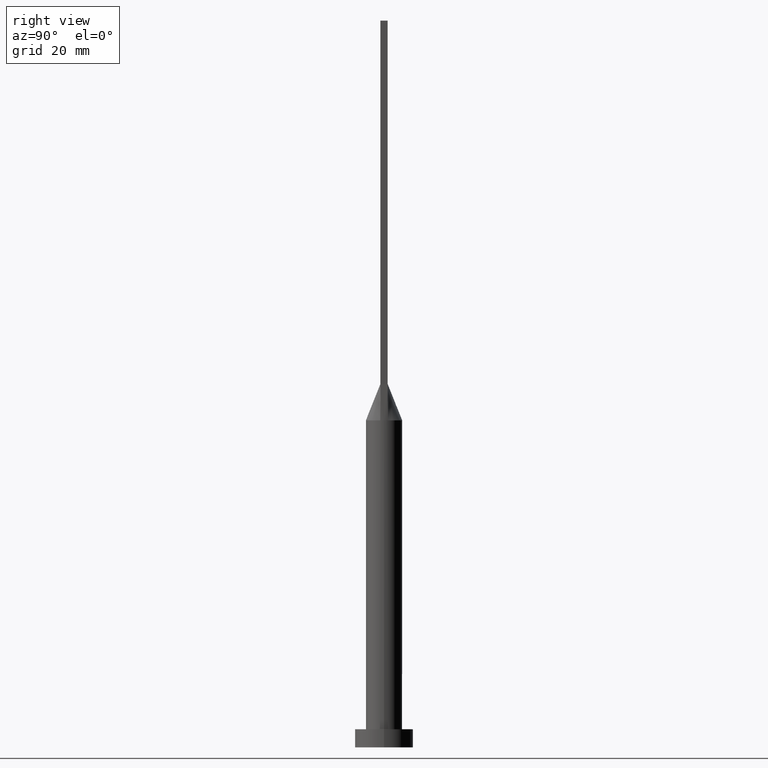
[diagram: clean part render]
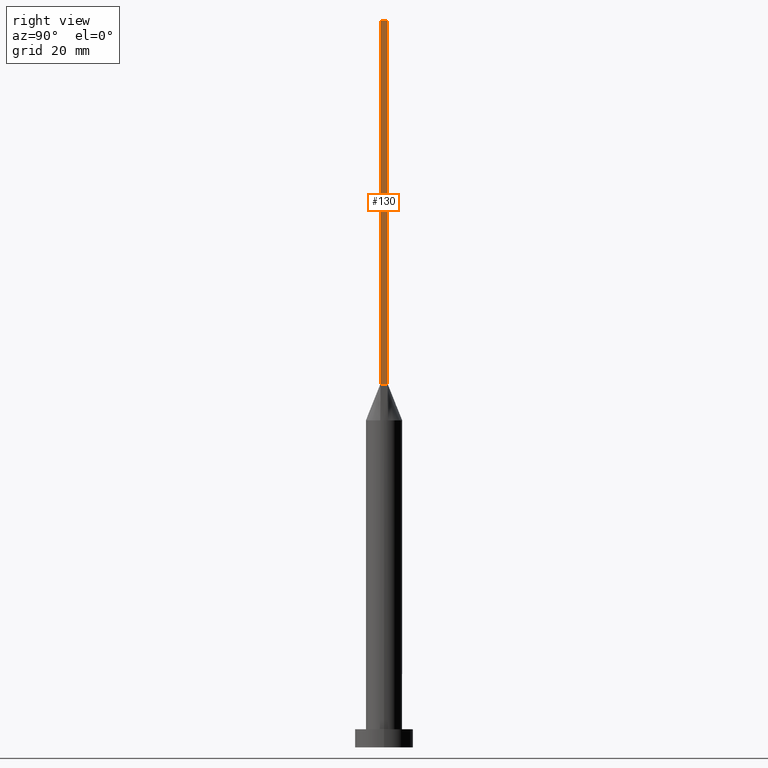
[diagram: same view with one face highlighted and labeled with its STEP entity id]
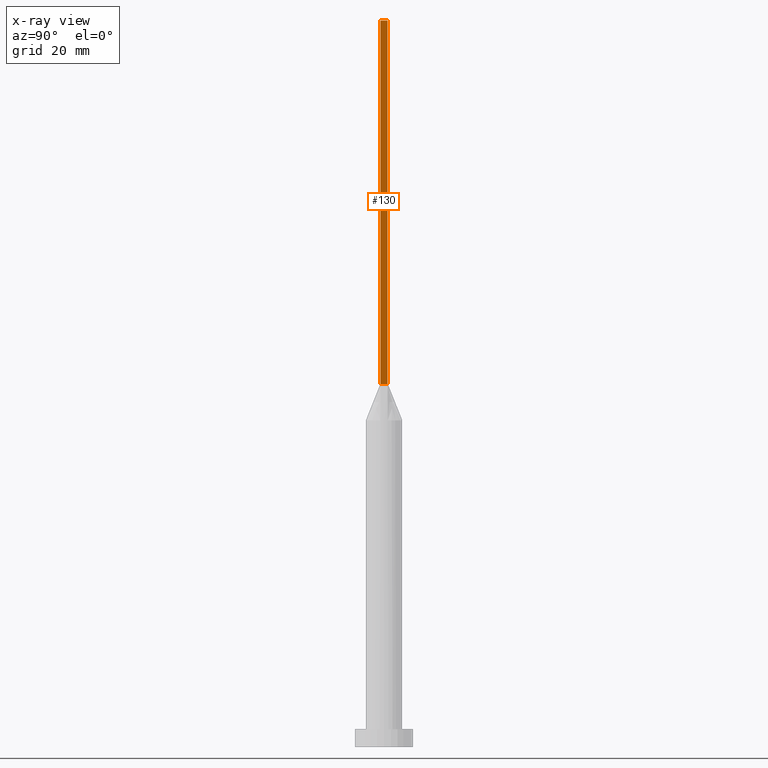
[diagram: x-ray of the same camera — body ghosted, the highlighted face saturated]
A machine part, right view. The second image highlights one B-rep face of the part: STEP entity #130.
The next image is the same camera in x-ray: the body ghosted, the highlighted face saturated — about 0% of this face is hidden behind the body in this view.
In plain terms, the highlighted planar face has unit normal (-1, 0, 0).
Its self-contained STEP definition (entity closure, byte-faithful):
#19 = LINE ( 'NONE', #513, #455 ) ;
#42 = EDGE_LOOP ( 'NONE', ( #468, #461, #225, #334 ) ) ;
#47 = DIRECTION ( 'NONE',  ( -1.000000000000000000, 0.000000000000000000, 0.000000000000000000 ) ) ;
#49 = DIRECTION ( 'NONE',  ( -0.000000000000000000, -0.000000000000000000, -1.000000000000000000 ) ) ;
#55 = LINE ( 'NONE', #255, #470 ) ;
#66 = CARTESIAN_POINT ( 'NONE',  ( 4.750000000000000000, 1.000000000000000000, 100.0000000000000000 ) ) ;
#102 = LINE ( 'NONE', #249, #265 ) ;
#116 = VERTEX_POINT ( 'NONE', #217 ) ;
#130 = ADVANCED_FACE ( 'NONE', ( #284 ), #233, .F. ) ;
#176 = VECTOR ( 'NONE', #252, 1000.000000000000000 ) ;
#194 = LINE ( 'NONE', #238, #176 ) ;
#217 = CARTESIAN_POINT ( 'NONE',  ( 4.750000000000000000, -0.9999999999999997780, 100.0000000000000000 ) ) ;
#223 = VERTEX_POINT ( 'NONE', #579 ) ;
#225 = ORIENTED_EDGE ( 'NONE', *, *, #496, .F. ) ;
#233 = PLANE ( 'NONE',  #469 ) ;
#238 = CARTESIAN_POINT ( 'NONE',  ( 4.750000000000000000, -0.9999999999999997780, 200.0000000000000000 ) ) ;
#249 = CARTESIAN_POINT ( 'NONE',  ( 4.750000000000000000, 1.000000000000000000, 200.0000000000000000 ) ) ;
#252 = DIRECTION ( 'NONE',  ( 0.000000000000000000, 1.000000000000000000, 0.000000000000000000 ) ) ;
#255 = CARTESIAN_POINT ( 'NONE',  ( 4.750000000000000000, 1.000000000000000000, 100.0000000000000000 ) ) ;
#265 = VECTOR ( 'NONE', #564, 1000.000000000000000 ) ;
#282 = DIRECTION ( 'NONE',  ( 0.000000000000000000, 0.000000000000000000, 1.000000000000000000 ) ) ;
#284 = FACE_OUTER_BOUND ( 'NONE', #42, .T. ) ;
#297 = DIRECTION ( 'NONE',  ( -0.000000000000000000, 1.000000000000000000, -0.000000000000000000 ) ) ;
#334 = ORIENTED_EDGE ( 'NONE', *, *, #351, .T. ) ;
#351 = EDGE_CURVE ( 'NONE', #597, #116, #19, .T. ) ;
#360 = CARTESIAN_POINT ( 'NONE',  ( 4.750000000000000000, -0.9999999999999997780, 200.0000000000000000 ) ) ;
#374 = EDGE_CURVE ( 'NONE', #223, #413, #102, .T. ) ;
#413 = VERTEX_POINT ( 'NONE', #66 ) ;
#452 = EDGE_CURVE ( 'NONE', #116, #413, #55, .T. ) ;
#455 = VECTOR ( 'NONE', #49, 1000.000000000000000 ) ;
#461 = ORIENTED_EDGE ( 'NONE', *, *, #374, .F. ) ;
#468 = ORIENTED_EDGE ( 'NONE', *, *, #452, .T. ) ;
#469 = AXIS2_PLACEMENT_3D ( 'NONE', #560, #47, #282 ) ;
#470 = VECTOR ( 'NONE', #297, 1000.000000000000000 ) ;
#496 = EDGE_CURVE ( 'NONE', #597, #223, #194, .T. ) ;
#513 = CARTESIAN_POINT ( 'NONE',  ( 4.750000000000000000, -0.9999999999999997780, 200.0000000000000000 ) ) ;
#560 = CARTESIAN_POINT ( 'NONE',  ( 4.750000000000000000, -0.9999999999999997780, 200.0000000000000000 ) ) ;
#564 = DIRECTION ( 'NONE',  ( -0.000000000000000000, -0.000000000000000000, -1.000000000000000000 ) ) ;
#579 = CARTESIAN_POINT ( 'NONE',  ( 4.750000000000000000, 1.000000000000000000, 200.0000000000000000 ) ) ;
#597 = VERTEX_POINT ( 'NONE', #360 ) ;